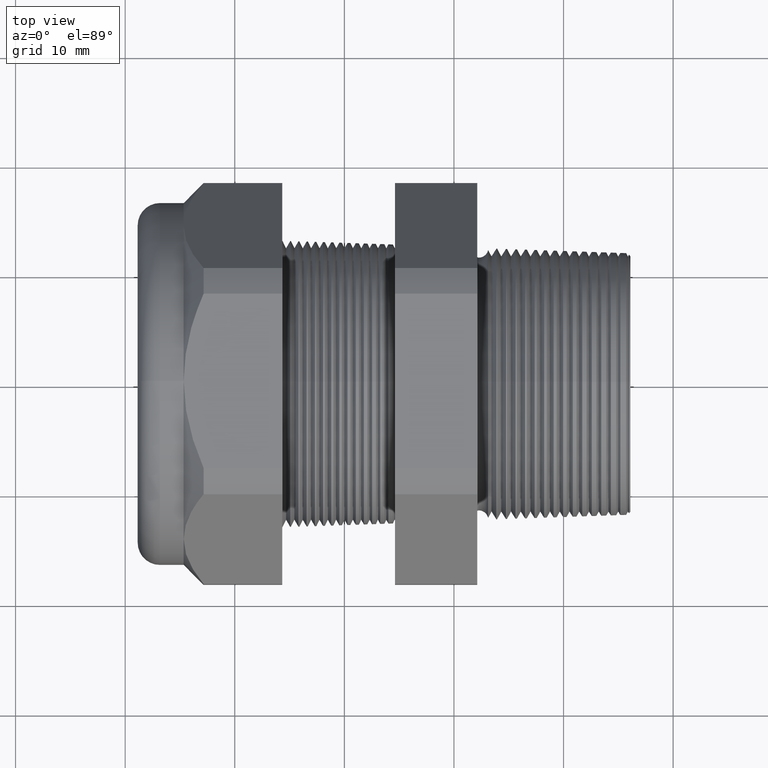
[diagram: clean part render]
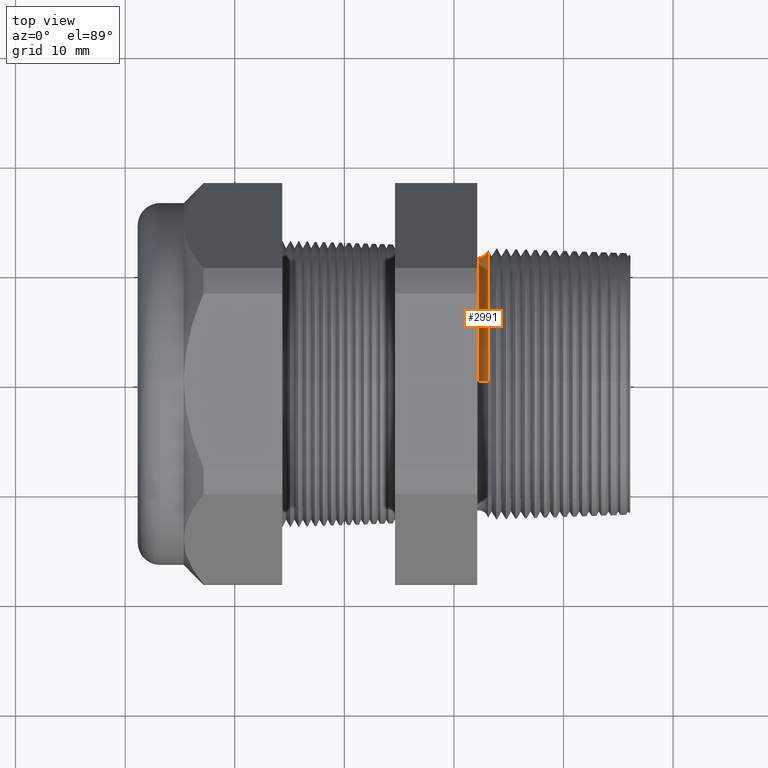
[diagram: same view with one face highlighted and labeled with its STEP entity id]
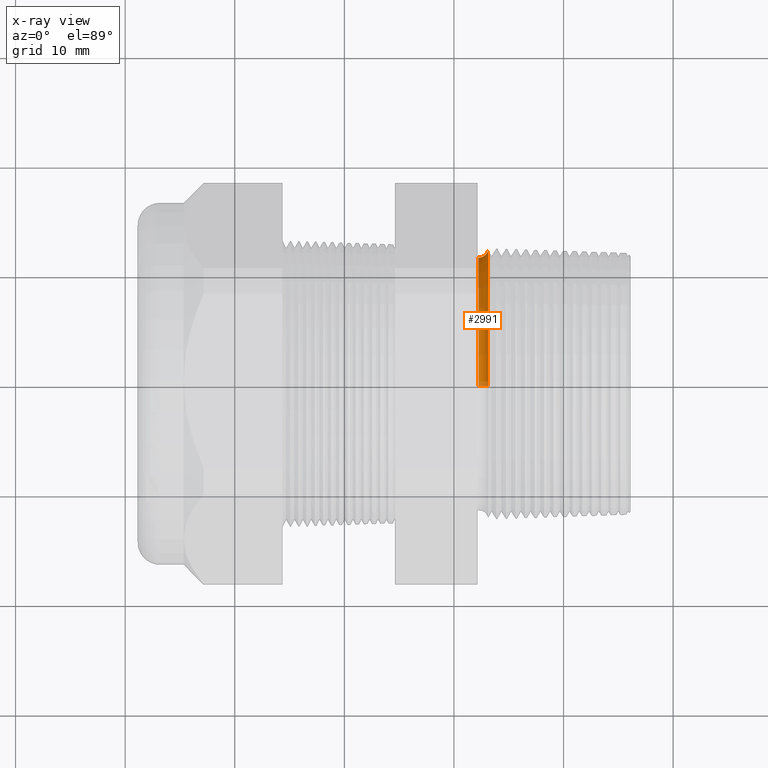
[diagram: x-ray of the same camera — body ghosted, the highlighted face saturated]
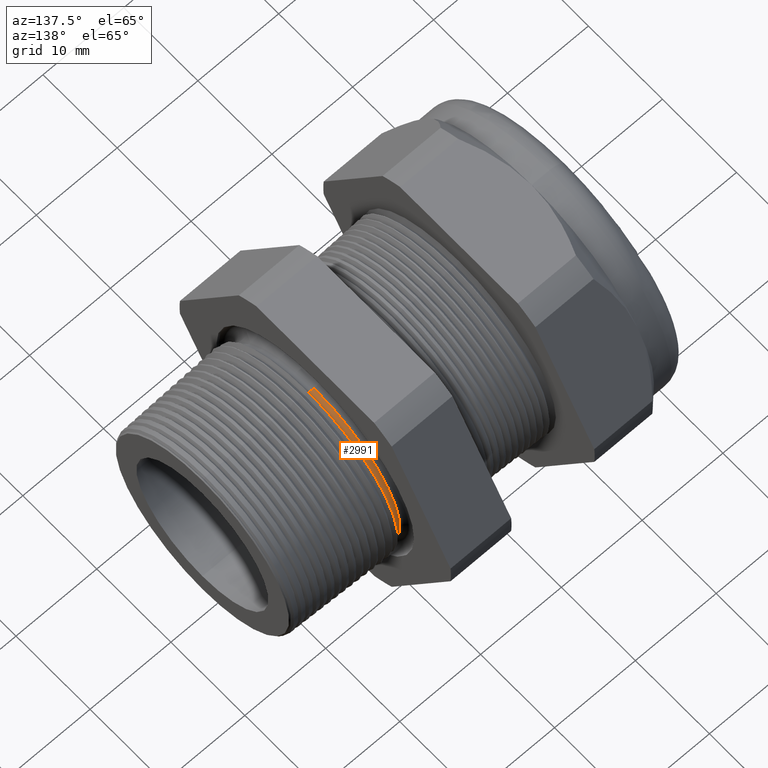
[diagram: same view with one face highlighted and labeled with its STEP entity id]
A machine part, top view. The second image highlights one B-rep face of the part: STEP entity #2991.
The next image is the same camera in x-ray: the body ghosted, the highlighted face saturated — about 3% of this face is hidden behind the body in this view.
A second angle (auxiliary view) of the same face is appended — the face is thin or edge-on in the first view.
In plain terms, the highlighted toroidal blend (fillet) surface has major radius 12.4598 mm and minor (blend) radius 0.889 mm.
Its self-contained STEP definition (entity closure, byte-faithful):
#192 = DIRECTION ( 'NONE',  ( 0.0000000000000000000, 1.224646799147352700E-016, 1.000000000000000000 ) ) ;
#193 = DIRECTION ( 'NONE',  ( 0.0000000000000000000, 1.000000000000000000, -1.224646799147353200E-016 ) ) ;
#194 = CARTESIAN_POINT ( 'NONE',  ( -0.3049999999999999400, 6.007437060705932800E-017, 0.4905444626882252100 ) ) ;
#195 = AXIS2_PLACEMENT_3D ( 'NONE', #194, #193, #192 ) ;
#196 = CIRCLE ( 'NONE', #195, 0.03499999999999996900 ) ;
#198 = CARTESIAN_POINT ( 'NONE',  ( -0.3049999999999999400, 5.578810681004358900E-017, 0.4555444626882252400 ) ) ;
#200 = DIRECTION ( 'NONE',  ( 0.0000000000000000000, 0.0000000000000000000, -1.000000000000000000 ) ) ;
#201 = DIRECTION ( 'NONE',  ( 1.000000000000000000, 0.0000000000000000000, 0.0000000000000000000 ) ) ;
#202 = CARTESIAN_POINT ( 'NONE',  ( -0.3049999999999999400, 0.0000000000000000000, 0.0000000000000000000 ) ) ;
#203 = AXIS2_PLACEMENT_3D ( 'NONE', #202, #201, #200 ) ;
#208 = CIRCLE ( 'NONE', #203, 0.4555444626882252400 ) ;
#211 = CARTESIAN_POINT ( 'NONE',  ( -0.3049999999999999400, 0.0000000000000000000, -0.4555444626882252400 ) ) ;
#212 = CARTESIAN_POINT ( 'NONE',  ( -0.2708719432804229100, 5.912358599665068400E-017, -0.4827807171652660500 ) ) ;
#249 = DIRECTION ( 'NONE',  ( 0.0000000000000000000, 0.0000000000000000000, -1.000000000000000000 ) ) ;
#250 = DIRECTION ( 'NONE',  ( 1.000000000000000000, 0.0000000000000000000, 0.0000000000000000000 ) ) ;
#251 = CARTESIAN_POINT ( 'NONE',  ( -0.3049999999999999400, 0.0000000000000000000, 0.0000000000000000000 ) ) ;
#252 = AXIS2_PLACEMENT_3D ( 'NONE', #251, #250, #249 ) ;
#253 = TOROIDAL_SURFACE ( 'NONE', #252, 0.4905444626882252100, 0.03499999999999994800 ) ;
#254 = FACE_OUTER_BOUND ( 'NONE', #3060, .T. ) ;
#272 = CARTESIAN_POINT ( 'NONE',  ( -0.2708719432804229100, 0.0000000000000000000, 0.4827807171652660500 ) ) ;
#279 = DIRECTION ( 'NONE',  ( 0.0000000000000000000, 0.0000000000000000000, 1.000000000000000000 ) ) ;
#280 = DIRECTION ( 'NONE',  ( 1.000000000000000000, 0.0000000000000000000, 0.0000000000000000000 ) ) ;
#281 = AXIS2_PLACEMENT_3D ( 'NONE', #287, #280, #279 ) ;
#282 = CIRCLE ( 'NONE', #281, 0.4827807171652660500 ) ;
#287 = CARTESIAN_POINT ( 'NONE',  ( -0.2708719432804229100, 0.0000000000000000000, 0.0000000000000000000 ) ) ;
#320 = CARTESIAN_POINT ( 'NONE',  ( -0.3049999999999999400, 0.0000000000000000000, -0.4905444626882252100 ) ) ;
#379 = DIRECTION ( 'NONE',  ( 0.0000000000000000000, 0.0000000000000000000, -1.000000000000000000 ) ) ;
#380 = DIRECTION ( 'NONE',  ( 0.0000000000000000000, -1.000000000000000000, 0.0000000000000000000 ) ) ;
#381 = AXIS2_PLACEMENT_3D ( 'NONE', #320, #380, #379 ) ;
#382 = CIRCLE ( 'NONE', #381, 0.03499999999999996900 ) ;
#2976 = VERTEX_POINT ( 'NONE', #212 ) ;
#2977 = VERTEX_POINT ( 'NONE', #211 ) ;
#2981 = ORIENTED_EDGE ( 'NONE', *, *, #2982, .T. ) ;
#2982 = EDGE_CURVE ( 'NONE', #2977, #2983, #208, .T. ) ;
#2983 = VERTEX_POINT ( 'NONE', #198 ) ;
#2986 = ORIENTED_EDGE ( 'NONE', *, *, #2987, .F. ) ;
#2987 = EDGE_CURVE ( 'NONE', #3007, #2983, #196, .T. ) ;
#2991 = ADVANCED_FACE ( 'NONE', ( #254 ), #253, .F. ) ;
#3005 = EDGE_CURVE ( 'NONE', #2976, #3007, #282, .T. ) ;
#3007 = VERTEX_POINT ( 'NONE', #272 ) ;
#3008 = ORIENTED_EDGE ( 'NONE', *, *, #3005, .F. ) ;
#3060 = EDGE_LOOP ( 'NONE', ( #3061, #2981, #2986, #3008 ) ) ;
#3061 = ORIENTED_EDGE ( 'NONE', *, *, #3062, .T. ) ;
#3062 = EDGE_CURVE ( 'NONE', #2976, #2977, #382, .T. ) ;